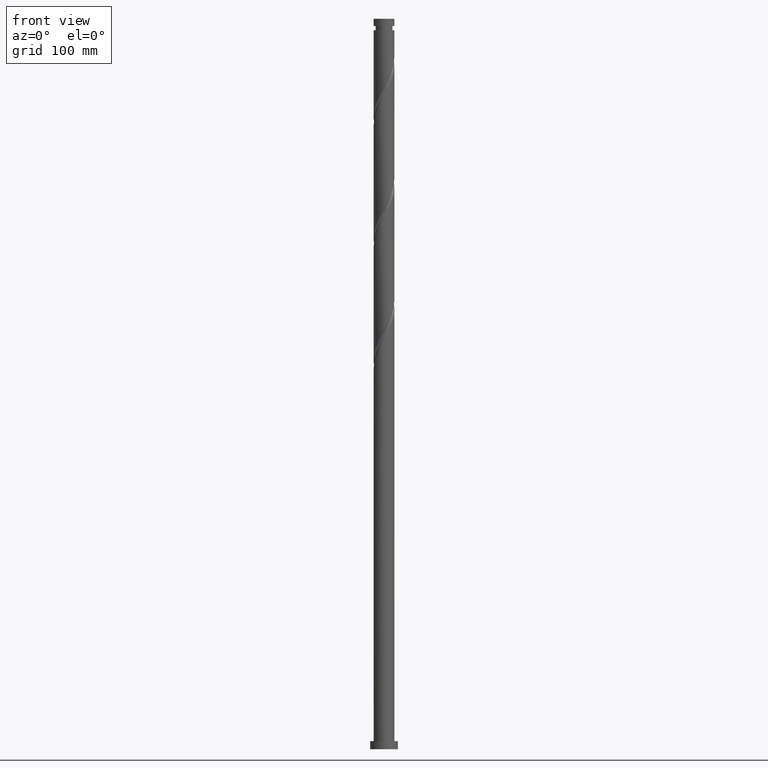
[diagram: clean part render]
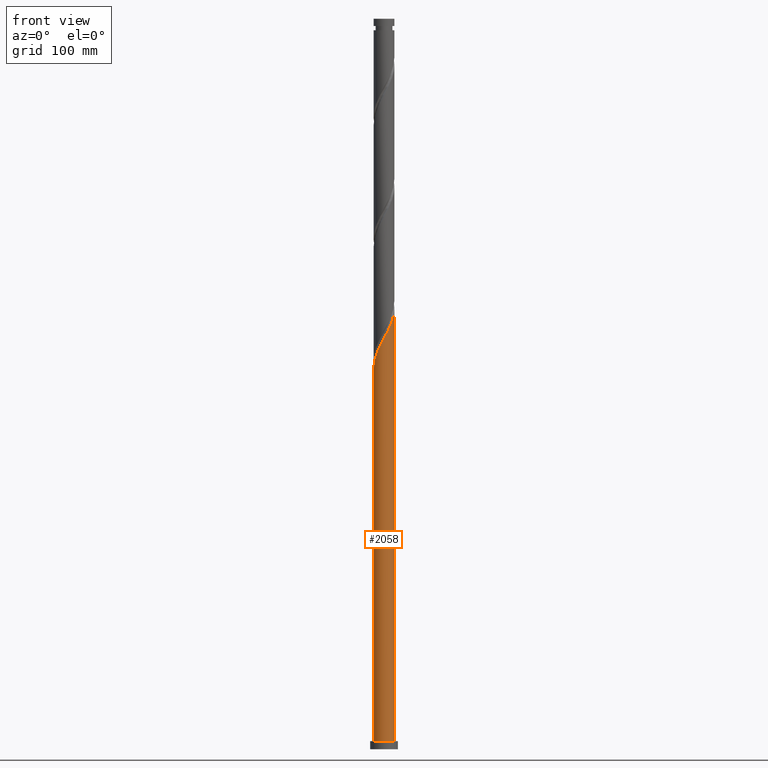
[diagram: same view with one face highlighted and labeled with its STEP entity id]
A machine part, front view. The second image highlights one B-rep face of the part: STEP entity #2058.
In plain terms, the highlighted cylindrical surface (edge-blend (fillet) strip) has radius 9 mm, axis along (-0, -0, -1).
Its self-contained STEP definition (entity closure, byte-faithful):
#26 = EDGE_CURVE ( 'NONE', #1802, #465, #83, .T. ) ;
#36 = EDGE_CURVE ( 'NONE', #351, #465, #744, .T. ) ;
#42 = CARTESIAN_POINT ( 'NONE',  ( 9.000000000000001776, 1.102182119232617911E-15, 7.000000000000000000 ) ) ;
#47 = CARTESIAN_POINT ( 'NONE',  ( 8.477908499574528634, -3.133780166343287821, 374.6547325510007340 ) ) ;
#74 = CARTESIAN_POINT ( 'NONE',  ( 0.000000000000000000, 0.000000000000000000, 7.000000000000000000 ) ) ;
#83 = LINE ( 'NONE', #1291, #1737 ) ;
#192 = LINE ( 'NONE', #867, #1598 ) ;
#209 = CARTESIAN_POINT ( 'NONE',  ( -3.902654721559273288, -8.152594481661386894, 346.8606149039418369 ) ) ;
#230 = CARTESIAN_POINT ( 'NONE',  ( -1.516114819096040067, -8.871380718654656050, 351.4929678451181303 ) ) ;
#265 = CARTESIAN_POINT ( 'NONE',  ( 4.856188172445347284, -7.577429408038199199, 363.8459090215886818 ) ) ;
#284 = CARTESIAN_POINT ( 'NONE',  ( 9.000000000000019540, -0.3460606909891417171, 379.9278239065997127 ) ) ;
#322 = AXIS2_PLACEMENT_3D ( 'NONE', #74, #1096, #1639 ) ;
#332 = CARTESIAN_POINT ( 'NONE',  ( -9.000000000000014211, -5.646845018084320665E-15, 328.0712296586594334 ) ) ;
#351 = VERTEX_POINT ( 'NONE', #1552 ) ;
#360 = CARTESIAN_POINT ( 'NONE',  ( -8.857785752436262428, -1.798650111072677582, 331.4194384333534913 ) ) ;
#378 = CARTESIAN_POINT ( 'NONE',  ( 6.773362270530297380, -5.984736770341805290, 368.4782619627652593 ) ) ;
#430 = CARTESIAN_POINT ( 'NONE',  ( 6.165851340533024860, -6.556087037741899159, 366.9341443157063622 ) ) ;
#452 = CARTESIAN_POINT ( 'NONE',  ( 3.381153340500782978, -8.340731507968627056, 360.7576737274711149 ) ) ;
#465 = VERTEX_POINT ( 'NONE', #42 ) ;
#498 = EDGE_CURVE ( 'NONE', #2028, #351, #192, .T. ) ;
#515 = DIRECTION ( 'NONE',  ( -1.000000000000000000, 0.000000000000000000, 0.000000000000000000 ) ) ;
#538 = CARTESIAN_POINT ( 'NONE',  ( -7.097032914130067205, -5.534629510252219831, 339.1400266686476925 ) ) ;
#546 = CARTESIAN_POINT ( 'NONE',  ( -9.000000000000012434, -0.4861798531133895707, 328.9751488906721875 ) ) ;
#556 = CARTESIAN_POINT ( 'NONE',  ( 2.608270746646629501, -8.654041505002851409, 359.2135560804123884 ) ) ;
#566 = CARTESIAN_POINT ( 'NONE',  ( 1.790977386791923642, -8.820000000000012719, 357.6694384333534913 ) ) ;
#597 = DIRECTION ( 'NONE',  ( -0.000000000000000000, -0.000000000000000000, -1.000000000000000000 ) ) ;
#695 = CARTESIAN_POINT ( 'NONE',  ( -7.993177945963313213, -4.136315549394891988, 336.0517913745298983 ) ) ;
#700 = DIRECTION ( 'NONE',  ( -0.000000000000000000, -0.000000000000000000, -1.000000000000000000 ) ) ;
#705 = CARTESIAN_POINT ( 'NONE',  ( -5.334239913606445782, -7.296670144813488967, 343.7723796098241564 ) ) ;
#744 = CIRCLE ( 'NONE', #322, 9.000000000000001776 ) ;
#762 = ORIENTED_EDGE ( 'NONE', *, *, #36, .T. ) ;
#768 = EDGE_LOOP ( 'NONE', ( #1649, #1824, #2168, #762 ) ) ;
#772 = CARTESIAN_POINT ( 'NONE',  ( 0.1398118462164794629, -8.998913970455422628, 354.5812031392358676 ) ) ;
#805 = CARTESIAN_POINT ( 'NONE',  ( 0.000000000000000000, 0.000000000000000000, 630.0000000000000000 ) ) ;
#811 =( BOUNDED_CURVE ( )  B_SPLINE_CURVE ( 2, ( #1676, #546, #861, #360, #1513, #1538, #695, #1367, #538, #1038, #1710, #705, #1377, #209, #1219, #2080, #230, #935, #772, #2088, #566, #556, #452, #1948, #265, #1234, #430, #378, #1395, #1801, #1638, #47, #947, #1118, #900, #284, #1616 ),
 .UNSPECIFIED., .F., .T. ) 
 B_SPLINE_CURVE_WITH_KNOTS ( ( 3, 2, 2, 2, 2, 2, 2, 2, 2, 2, 2, 2, 2, 2, 2, 2, 2, 2, 3 ),
 ( 0.05452935731629054983, 0.05882352941176471894, 0.06617647058823528106, 0.07352941176470584317, 0.08088235294117651630, 0.08823529411764707842, 0.09558823529411764053, 0.1029411764705882026, 0.1102941176470588758, 0.1176470588235294379, 0.1250000000000000000, 0.1323529411764705621, 0.1397058823529411242, 0.1470588235294117974, 0.1544117647058823595, 0.1617647058823529216, 0.1691176470588234837, 0.1764705882352941568, 0.1795293573162904943 ),
 .UNSPECIFIED. ) 
 CURVE ( )  GEOMETRIC_REPRESENTATION_ITEM ( )  RATIONAL_B_SPLINE_CURVE ( ( 0.9072066346053047070, 0.9068261157890717961, 0.9090909090909431445, 0.9052128875409741759, 0.9090909090909431445, 0.9052128875409741759, 0.9090909090909431445, 0.9052128875409741759, 0.9090909090909431445, 0.9052128875409741759, 0.9090909090909431445, 0.9052128875409741759, 0.9090909090909431445, 0.9052128875409741759, 0.9090909090909431445, 0.9052128875409741759, 0.9090909090909431445, 0.9052128875409741759, 0.9090909090909431445, 0.9052128875409741759, 0.9090909090909431445, 0.9052128875409741759, 0.9090909090909431445, 0.9052128875409741759, 0.9090909090909431445, 0.9052128875409741759, 0.9090909090909431445, 0.9052128875409741759, 0.9090909090909431445, 0.9052128875409741759, 0.9090909090909431445, 0.9052128875409741759, 0.9090909090909431445, 0.9052128875409741759, 0.9090909090909431445, 0.9074776808428455244, 0.9072066346053047070 ) ) 
 REPRESENTATION_ITEM ( '' )  );
#861 = CARTESIAN_POINT ( 'NONE',  ( -8.947625980237377874, -0.9695304625339655757, 329.8753207862946510 ) ) ;
#867 = CARTESIAN_POINT ( 'NONE',  ( -9.000000000000001776, 0.000000000000000000, 630.0000000000000000 ) ) ;
#900 = CARTESIAN_POINT ( 'NONE',  ( 8.973426399605243020, -0.6910995954766591121, 379.2870854921770274 ) ) ;
#935 = CARTESIAN_POINT ( 'NONE',  ( -0.6940603345042627437, -9.011869445913680110, 353.0370854921771979 ) ) ;
#947 = CARTESIAN_POINT ( 'NONE',  ( 8.693647545373256236, -2.328195085645923257, 376.1988501980594037 ) ) ;
#1038 = CARTESIAN_POINT ( 'NONE',  ( -6.584173963111356720, -6.192266457575213323, 340.6841443157064191 ) ) ;
#1066 = AXIS2_PLACEMENT_3D ( 'NONE', #805, #1165, #515 ) ;
#1096 = DIRECTION ( 'NONE',  ( 0.000000000000000000, 0.000000000000000000, 1.000000000000000000 ) ) ;
#1118 = CARTESIAN_POINT ( 'NONE',  ( 8.909386591171982062, -1.522610004948567797, 377.7429678451181871 ) ) ;
#1165 = DIRECTION ( 'NONE',  ( -0.000000000000000000, -0.000000000000000000, -1.000000000000000000 ) ) ;
#1219 = CARTESIAN_POINT ( 'NONE',  ( -3.120412012623544395, -8.441743236528516547, 348.4047325510005635 ) ) ;
#1234 = CARTESIAN_POINT ( 'NONE',  ( 5.558340410535752341, -7.127437305142000135, 365.3900266686477494 ) ) ;
#1291 = CARTESIAN_POINT ( 'NONE',  ( 9.000000000000001776, 1.102182119232617911E-15, 630.0000000000000000 ) ) ;
#1302 = CYLINDRICAL_SURFACE ( 'NONE', #1066, 9.000000000000001776 ) ;
#1367 = CARTESIAN_POINT ( 'NONE',  ( -7.609891865148779466, -4.876992562929230779, 337.5959090215888523 ) ) ;
#1377 = CARTESIAN_POINT ( 'NONE',  ( -4.618447317582857536, -7.724632313237436598, 345.3164972568828830 ) ) ;
#1395 = CARTESIAN_POINT ( 'NONE',  ( 7.265543836342427397, -5.311484986535008446, 370.0223796098240996 ) ) ;
#1492 = FACE_OUTER_BOUND ( 'NONE', #768, .T. ) ;
#1513 = CARTESIAN_POINT ( 'NONE',  ( -8.617124889607055138, -2.597144323466614502, 332.9635560804122747 ) ) ;
#1538 = CARTESIAN_POINT ( 'NONE',  ( -8.376464026777849625, -3.395638535860555418, 334.5076737274711718 ) ) ;
#1552 = CARTESIAN_POINT ( 'NONE',  ( -9.000000000000001776, 0.000000000000000000, 7.000000000000000000 ) ) ;
#1598 = VECTOR ( 'NONE', #700, 1000.000000000000000 ) ;
#1616 = CARTESIAN_POINT ( 'NONE',  ( 9.000000000000017764, 6.184639781711398523E-15, 380.5712296586594334 ) ) ;
#1638 = CARTESIAN_POINT ( 'NONE',  ( 8.117816950864543912, -3.886006684535749489, 373.1106149039417232 ) ) ;
#1639 = DIRECTION ( 'NONE',  ( 1.000000000000000000, 0.000000000000000000, 0.000000000000000000 ) ) ;
#1649 = ORIENTED_EDGE ( 'NONE', *, *, #26, .F. ) ;
#1676 = CARTESIAN_POINT ( 'NONE',  ( -9.000000000000014211, -5.646845018084320665E-15, 328.0712296586594334 ) ) ;
#1710 = CARTESIAN_POINT ( 'NONE',  ( -5.959206938358899919, -6.744468301194349813, 342.2282619627653162 ) ) ;
#1737 = VECTOR ( 'NONE', #597, 1000.000000000000000 ) ;
#1801 = CARTESIAN_POINT ( 'NONE',  ( 7.757725402154564520, -4.638233202728213378, 371.5664972568829398 ) ) ;
#1802 = VERTEX_POINT ( 'NONE', #2152 ) ;
#1824 = ORIENTED_EDGE ( 'NONE', *, *, #1904, .F. ) ;
#1904 = EDGE_CURVE ( 'NONE', #2028, #1802, #811, .T. ) ;
#1948 = CARTESIAN_POINT ( 'NONE',  ( 4.154035934354943116, -8.027421510934408033, 362.3017913745300689 ) ) ;
#2028 = VERTEX_POINT ( 'NONE', #332 ) ;
#2058 = ADVANCED_FACE ( 'NONE', ( #1492 ), #1302, .T. ) ;
#2080 = CARTESIAN_POINT ( 'NONE',  ( -2.338169303687822609, -8.730891991395644425, 349.9488501980595174 ) ) ;
#2088 = CARTESIAN_POINT ( 'NONE',  ( 0.9736840269372226686, -8.985958494997177581, 356.1253207862947647 ) ) ;
#2152 = CARTESIAN_POINT ( 'NONE',  ( 9.000000000000015987, 6.184639781711398523E-15, 380.5712296586594334 ) ) ;
#2168 = ORIENTED_EDGE ( 'NONE', *, *, #498, .T. ) ;